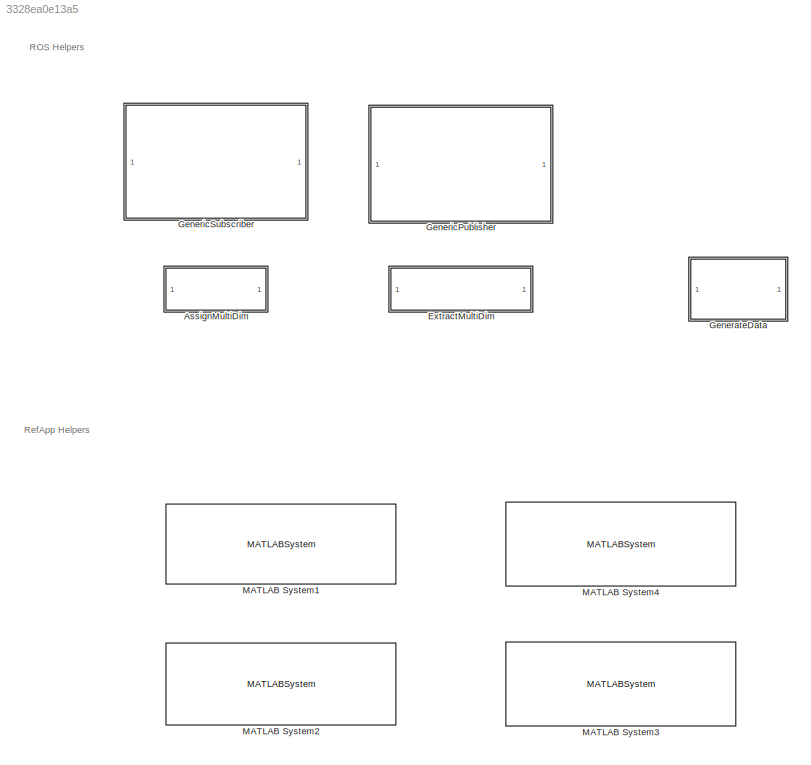
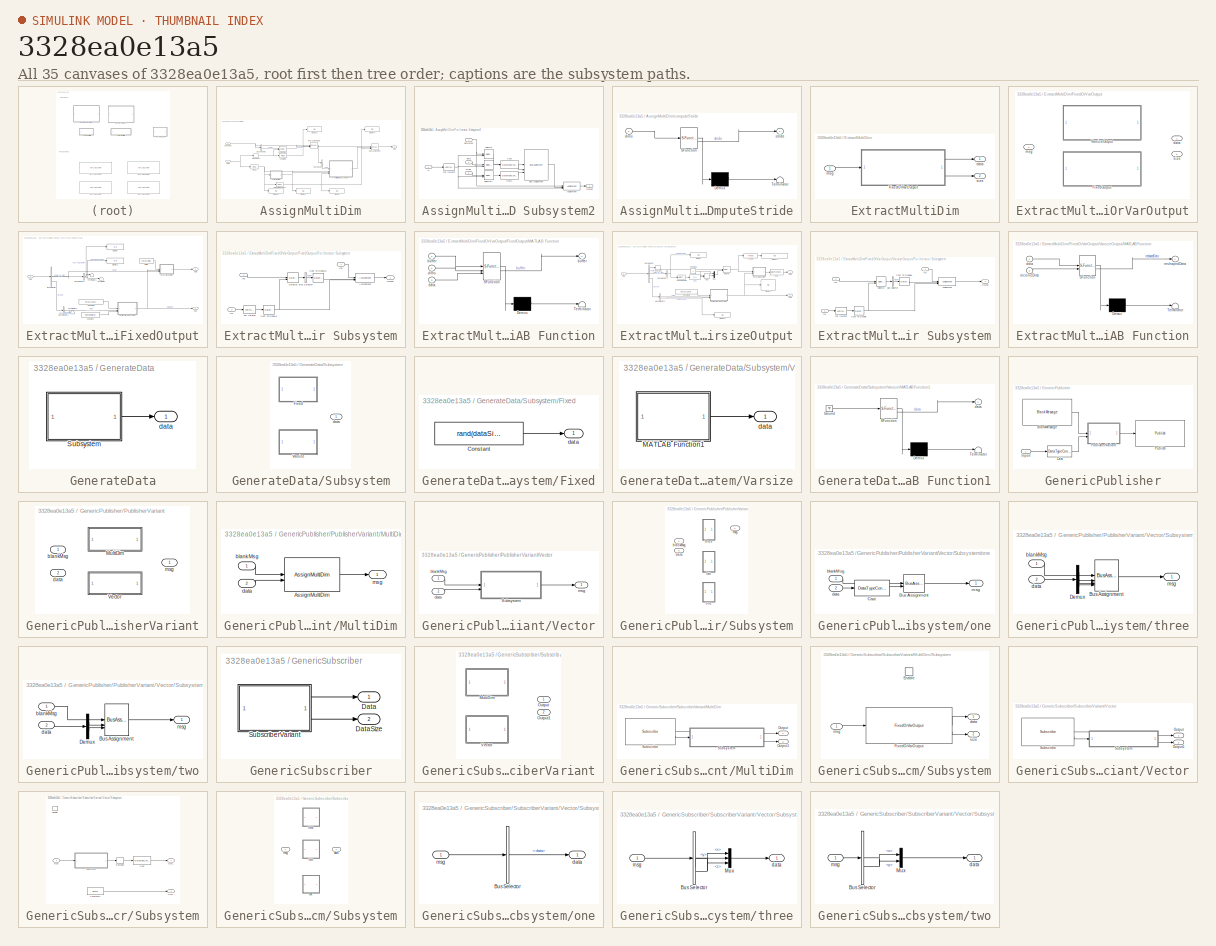
[diagram: thumbnail index - all 35 canvases of the model, root first then tree order]
MODEL slx_3328ea0e13a5
KIND library
CONFIG AbsTol = auto
CONFIG EnableMultiTasking = off
CONFIG FixedStep = auto
CONFIG MaxStep = auto
CONFIG MinStep = auto
CONFIG RelTol = 1e-3
CONFIG SampleTimeConstraint = Unconstrained
CONFIG SolverName = VariableStepAuto
CONFIG StartTime = 0.0
CONFIG StopTime = 10.0
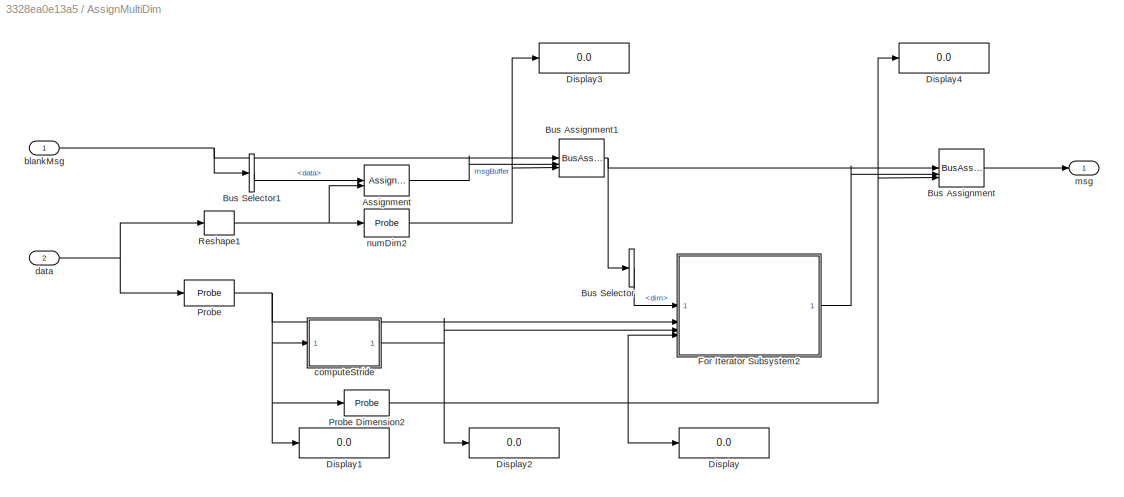
BLOCK [SubSystem] AssignMultiDim
BLOCK [Assignment] AssignMultiDim/Assignment
  DiagnosticForDimensions = Warning
  IndexOptions = Starting index (dialog)
  Indices = 1
  OutputSizes = 1
BLOCK [BusAssignment] AssignMultiDim/Bus Assignment
  AssignedSignals = layout.dim,layout.dim_SL_Info.CurrentLength
BLOCK [BusAssignment] AssignMultiDim/Bus Assignment1
  AssignedSignals = data,data_SL_Info.CurrentLength
BLOCK [BusSelector] AssignMultiDim/Bus Selector
  OutputSignals = layout.dim
BLOCK [BusSelector] AssignMultiDim/Bus Selector1
  OutputSignals = data
BLOCK [Display] AssignMultiDim/Display
  Decimation = 1
BLOCK [Display] AssignMultiDim/Display1
  Decimation = 1
BLOCK [Display] AssignMultiDim/Display2
  Decimation = 1
BLOCK [Display] AssignMultiDim/Display3
  Decimation = 1
BLOCK [Display] AssignMultiDim/Display4
  Decimation = 1
BLOCK [SubSystem] AssignMultiDim/For Iterator Subsystem2
  TreatAsAtomicUnit = on
BLOCK [Assignment] AssignMultiDim/For Iterator Subsystem2/Assignment
  DiagnosticForDimensions = Warning
  IndexOptions = Index vector (port)
  Indices = 1
  OutputSizes = 1
BLOCK [BusAssignment] AssignMultiDim/For Iterator Subsystem2/Bus Assignment
  AssignedSignals = size,stride
BLOCK [DataTypeConversion] AssignMultiDim/For Iterator Subsystem2/Cast
  OutDataTypeStr = uint32
  RndMeth = Floor
  SaturateOnIntegerOverflow = off
BLOCK [DataTypeConversion] AssignMultiDim/For Iterator Subsystem2/Cast1
  OutDataTypeStr = uint32
  RndMeth = Floor
  SaturateOnIntegerOverflow = off
BLOCK [ForIterator] AssignMultiDim/For Iterator Subsystem2/For Iterator
  IterationLimit = 16
  IterationSource = external
BLOCK [Inport] AssignMultiDim/For Iterator Subsystem2/N
  Port = 4
BLOCK [Outport] AssignMultiDim/For Iterator Subsystem2/Output
BLOCK [Selector] AssignMultiDim/For Iterator Subsystem2/Selector
  IndexOptions = Index vector (port)
  Indices = [1 3]
  InputPortWidth = 16
  OutputSizes = 1
BLOCK [Selector] AssignMultiDim/For Iterator Subsystem2/Selector1
  IndexOptions = Index vector (port)
  Indices = [1 3]
  OutputSizes = 1
BLOCK [Selector] AssignMultiDim/For Iterator Subsystem2/Selector2
  IndexOptions = Index vector (port)
  Indices = [1 3]
  OutputSizes = 1
BLOCK [Inport] AssignMultiDim/For Iterator Subsystem2/dimLayout
BLOCK [Inport] AssignMultiDim/For Iterator Subsystem2/dims
  Port = 2
BLOCK [Inport] AssignMultiDim/For Iterator Subsystem2/stride
  Port = 3
BLOCK [Probe] AssignMultiDim/Probe
  ProbeComplexSignal = off
  ProbeSampleTime = off
  ProbeSignalDimensions = on
  ProbeWidth = off
BLOCK [Probe] AssignMultiDim/Probe Dimension2
  ProbeComplexSignal = off
  ProbeDimensionsDataType = uint32
  ProbeSampleTime = off
  ProbeSignalDimensions = on
  ProbeWidth = off
  ProbeWidthDataType = uint32
BLOCK [Reshape] AssignMultiDim/Reshape1
BLOCK [Inport] AssignMultiDim/blankMsg
BLOCK [SubSystem] AssignMultiDim/computeStride
  ErrorFcn = Stateflow.Translate.translate
  PermitHierarchicalResolution = ExplicitOnly
  SFBlockType = MATLAB Function
  TreatAsAtomicUnit = on
BLOCK [Demux] AssignMultiDim/computeStride/ Demux 
  Outputs = 1
BLOCK [S-Function] AssignMultiDim/computeStride/ SFunction 
  EnableBusSupport = off
  FunctionName = sf_sfun
  PortCounts = [1 2]
  SFcnIsStateOwnerBlock = off
  SFunctionDeploymentMode = off
  Tag = Stateflow S-Function 4
BLOCK [Terminator] AssignMultiDim/computeStride/ Terminator 
BLOCK [Inport] AssignMultiDim/computeStride/dims
BLOCK [Outport] AssignMultiDim/computeStride/stride
BLOCK [Inport] AssignMultiDim/data
  Port = 2
BLOCK [Outport] AssignMultiDim/msg
BLOCK [Probe] AssignMultiDim/numDim2
  ProbeComplexSignal = off
  ProbeSampleTime = off
  ProbeWidthDataType = uint32
BLOCK [SubSystem] ExtractMultiDim
BLOCK [SubSystem] ExtractMultiDim/FixedOrVarOutput
  Variant = on
  VariantControl = Subsystem
BLOCK [SubSystem] ExtractMultiDim/FixedOrVarOutput/FixedOutput
  VariantControl = outputIsFixedTF==1
BLOCK [Constant] ExtractMultiDim/FixedOrVarOutput/FixedOutput/Buffer
  OutDataTypeStr = userDataType
  Value = zeros(dims)
BLOCK [BusSelector] ExtractMultiDim/FixedOrVarOutput/FixedOutput/Bus Selector
  OutputSignals = data,data_SL_Info,layout
BLOCK [BusSelector] ExtractMultiDim/FixedOrVarOutput/FixedOutput/Bus Selector1
  OutputSignals = CurrentLength,ReceivedLength
BLOCK [BusSelector] ExtractMultiDim/FixedOrVarOutput/FixedOutput/Bus Selector2
  OutputSignals = dim,dim_SL_Info.ReceivedLength
BLOCK [Constant] ExtractMultiDim/FixedOrVarOutput/FixedOutput/Constant
  Value = numel(dims)
BLOCK [Constant] ExtractMultiDim/FixedOrVarOutput/FixedOutput/Constant2
  Value = zeros(1,numel(dims))
  VectorParams1D = off
BLOCK [Display] ExtractMultiDim/FixedOrVarOutput/FixedOutput/Display
  Decimation = 1
BLOCK [Display] ExtractMultiDim/FixedOrVarOutput/FixedOutput/Display1
  Decimation = 1
BLOCK [SubSystem] ExtractMultiDim/FixedOrVarOutput/FixedOutput/For Iterator Subsystem
  TreatAsAtomicUnit = on
BLOCK [Assignment] ExtractMultiDim/FixedOrVarOutput/FixedOutput/For Iterator Subsystem/Assignment
  DiagnosticForDimensions = Warning
  IndexOptions = Starting index (port)
  Indices = 1
  OutputSizes = 1
BLOCK [BusSelector] ExtractMultiDim/FixedOrVarOutput/FixedOutput/For Iterator Subsystem/Bus Selector
  OutputSignals = size
BLOCK [DataTypeConversion] ExtractMultiDim/FixedOrVarOutput/FixedOutput/For Iterator Subsystem/Cast To Double
  OutDataTypeStr = double
  RndMeth = Floor
  SaturateOnIntegerOverflow = off
BLOCK [DataTypeConversion] ExtractMultiDim/FixedOrVarOutput/FixedOutput/For Iterator Subsystem/Cast To Double1
  OutDataTypeStr = double
  RndMeth = Floor
  SaturateOnIntegerOverflow = off
BLOCK [ForIterator] ExtractMultiDim/FixedOrVarOutput/FixedOutput/For Iterator Subsystem/For Iterator
  IterationSource = external
BLOCK [Inport] ExtractMultiDim/FixedOrVarOutput/FixedOutput/For Iterator Subsystem/In1
  Port = 3
BLOCK [Inport] ExtractMultiDim/FixedOrVarOutput/FixedOutput/For Iterator Subsystem/In2
  Port = 2
BLOCK [Inport] ExtractMultiDim/FixedOrVarOutput/FixedOutput/For Iterator Subsystem/In3
BLOCK [Outport] ExtractMultiDim/FixedOrVarOutput/FixedOutput/For Iterator Subsystem/Output
BLOCK [Selector] ExtractMultiDim/FixedOrVarOutput/FixedOutput/For Iterator Subsystem/Selector
  IndexOptions = Index vector (port)
  Indices = [1 3]
  InputPortWidth = 16
  OutputSizes = 1
BLOCK [SubSystem] ExtractMultiDim/FixedOrVarOutput/FixedOutput/MATLAB Function
  ErrorFcn = Stateflow.Translate.translate
  PermitHierarchicalResolution = ExplicitOnly
  SFBlockType = MATLAB Function
  TreatAsAtomicUnit = on
BLOCK [Demux] ExtractMultiDim/FixedOrVarOutput/FixedOutput/MATLAB Function/ Demux 
  Outputs = 1
BLOCK [S-Function] ExtractMultiDim/FixedOrVarOutput/FixedOutput/MATLAB Function/ SFunction 
  EnableBusSupport = off
  FunctionName = sf_sfun
  PortCounts = [3 2]
  SFcnIsStateOwnerBlock = off
  SFunctionDeploymentMode = off
  Tag = Stateflow S-Function 1
BLOCK [Terminator] ExtractMultiDim/FixedOrVarOutput/FixedOutput/MATLAB Function/ Terminator 
BLOCK [Outport] ExtractMultiDim/FixedOrVarOutput/FixedOutput/MATLAB Function/buffer
BLOCK [Inport] ExtractMultiDim/FixedOrVarOutput/FixedOutput/MATLAB Function/buffer 
BLOCK [Inport] ExtractMultiDim/FixedOrVarOutput/FixedOutput/MATLAB Function/data
  Port = 3
BLOCK [Inport] ExtractMultiDim/FixedOrVarOutput/FixedOutput/MATLAB Function/dims
  Port = 2
BLOCK [Terminator] ExtractMultiDim/FixedOrVarOutput/FixedOutput/Terminator
BLOCK [Terminator] ExtractMultiDim/FixedOrVarOutput/FixedOutput/Terminator1
BLOCK [Terminator] ExtractMultiDim/FixedOrVarOutput/FixedOutput/Terminator2
BLOCK [Outport] ExtractMultiDim/FixedOrVarOutput/FixedOutput/data
BLOCK [Inport] ExtractMultiDim/FixedOrVarOutput/FixedOutput/msg
BLOCK [Outport] ExtractMultiDim/FixedOrVarOutput/FixedOutput/size
  Port = 2
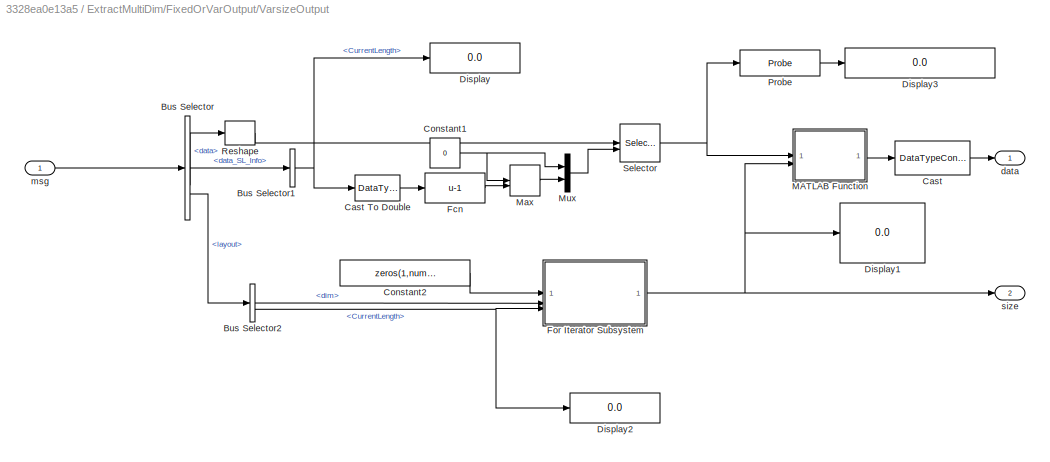
BLOCK [SubSystem] ExtractMultiDim/FixedOrVarOutput/VarsizeOutput
  VariantControl = outputIsFixedTF==0
BLOCK [BusSelector] ExtractMultiDim/FixedOrVarOutput/VarsizeOutput/Bus Selector
  OutputSignals = data,data_SL_Info,layout
BLOCK [BusSelector] ExtractMultiDim/FixedOrVarOutput/VarsizeOutput/Bus Selector1
  OutputSignals = CurrentLength
BLOCK [BusSelector] ExtractMultiDim/FixedOrVarOutput/VarsizeOutput/Bus Selector2
  OutputSignals = dim,dim_SL_Info.CurrentLength
BLOCK [DataTypeConversion] ExtractMultiDim/FixedOrVarOutput/VarsizeOutput/Cast
  OutDataTypeStr = userDataType
  RndMeth = Floor
  SaturateOnIntegerOverflow = off
BLOCK [DataTypeConversion] ExtractMultiDim/FixedOrVarOutput/VarsizeOutput/Cast To Double
  OutDataTypeStr = double
  RndMeth = Floor
  SaturateOnIntegerOverflow = off
BLOCK [Constant] ExtractMultiDim/FixedOrVarOutput/VarsizeOutput/Constant1
  Value = 0
BLOCK [Constant] ExtractMultiDim/FixedOrVarOutput/VarsizeOutput/Constant2
  Value = zeros(1,numel(dims))
  VectorParams1D = off
BLOCK [Display] ExtractMultiDim/FixedOrVarOutput/VarsizeOutput/Display
  Decimation = 1
BLOCK [Display] ExtractMultiDim/FixedOrVarOutput/VarsizeOutput/Display1
  Decimation = 1
BLOCK [Display] ExtractMultiDim/FixedOrVarOutput/VarsizeOutput/Display2
  Decimation = 1
BLOCK [Display] ExtractMultiDim/FixedOrVarOutput/VarsizeOutput/Display3
  Decimation = 1
BLOCK [Fcn] ExtractMultiDim/FixedOrVarOutput/VarsizeOutput/Fcn
  Expr = u-1
BLOCK [SubSystem] ExtractMultiDim/FixedOrVarOutput/VarsizeOutput/For Iterator Subsystem
  TreatAsAtomicUnit = on
BLOCK [Assignment] ExtractMultiDim/FixedOrVarOutput/VarsizeOutput/For Iterator Subsystem/Assignment
  DiagnosticForDimensions = Warning
  IndexOptions = Starting index (port)
  Indices = 1
  OutputSizes = 1
BLOCK [BusSelector] ExtractMultiDim/FixedOrVarOutput/VarsizeOutput/For Iterator Subsystem/Bus Selector
  OutputSignals = size
BLOCK [DataTypeConversion] ExtractMultiDim/FixedOrVarOutput/VarsizeOutput/For Iterator Subsystem/Cast To Double
  OutDataTypeStr = double
  RndMeth = Floor
  SaturateOnIntegerOverflow = off
BLOCK [DataTypeConversion] ExtractMultiDim/FixedOrVarOutput/VarsizeOutput/For Iterator Subsystem/Cast To Double1
  OutDataTypeStr = double
  RndMeth = Floor
  SaturateOnIntegerOverflow = off
BLOCK [ForIterator] ExtractMultiDim/FixedOrVarOutput/VarsizeOutput/For Iterator Subsystem/For Iterator
  IterationSource = external
BLOCK [Inport] ExtractMultiDim/FixedOrVarOutput/VarsizeOutput/For Iterator Subsystem/In1
  Port = 3
BLOCK [Inport] ExtractMultiDim/FixedOrVarOutput/VarsizeOutput/For Iterator Subsystem/In2
  Port = 2
BLOCK [Inport] ExtractMultiDim/FixedOrVarOutput/VarsizeOutput/For Iterator Subsystem/In3
BLOCK [Outport] ExtractMultiDim/FixedOrVarOutput/VarsizeOutput/For Iterator Subsystem/Output
BLOCK [Selector] ExtractMultiDim/FixedOrVarOutput/VarsizeOutput/For Iterator Subsystem/Selector
  IndexOptions = Index vector (port)
  Indices = [1 3]
  InputPortWidth = 16
  OutputSizes = 1
BLOCK [SubSystem] ExtractMultiDim/FixedOrVarOutput/VarsizeOutput/MATLAB Function
  ErrorFcn = Stateflow.Translate.translate
  PermitHierarchicalResolution = ExplicitOnly
  SFBlockType = MATLAB Function
  TreatAsAtomicUnit = on
BLOCK [Demux] ExtractMultiDim/FixedOrVarOutput/VarsizeOutput/MATLAB Function/ Demux 
  Outputs = 1
BLOCK [S-Function] ExtractMultiDim/FixedOrVarOutput/VarsizeOutput/MATLAB Function/ SFunction 
  EnableBusSupport = off
  FunctionName = sf_sfun
  PortCounts = [2 2]
  SFcnIsStateOwnerBlock = off
  SFunctionDeploymentMode = off
  Tag = Stateflow S-Function 8
BLOCK [Terminator] ExtractMultiDim/FixedOrVarOutput/VarsizeOutput/MATLAB Function/ Terminator 
BLOCK [Inport] ExtractMultiDim/FixedOrVarOutput/VarsizeOutput/MATLAB Function/data
BLOCK [Inport] ExtractMultiDim/FixedOrVarOutput/VarsizeOutput/MATLAB Function/receiveDims
  Port = 2
BLOCK [Outport] ExtractMultiDim/FixedOrVarOutput/VarsizeOutput/MATLAB Function/reshapedData
BLOCK [MinMax] ExtractMultiDim/FixedOrVarOutput/VarsizeOutput/Max
  Function = max
  Inputs = 2
BLOCK [Mux] ExtractMultiDim/FixedOrVarOutput/VarsizeOutput/Mux
  DisplayOption = bar
  Inputs = 2
BLOCK [Probe] ExtractMultiDim/FixedOrVarOutput/VarsizeOutput/Probe
  ProbeComplexSignal = off
  ProbeSampleTime = off
  ProbeSignalDimensions = on
  ProbeWidth = off
BLOCK [Reshape] ExtractMultiDim/FixedOrVarOutput/VarsizeOutput/Reshape
  OutputDimensionality = Column vector (2-D)
BLOCK [Selector] ExtractMultiDim/FixedOrVarOutput/VarsizeOutput/Selector
  IndexMode = Zero-based
  IndexOptions = Starting and ending indices (port),Select all
  Indices = [1 3],1
  InputPortWidth = 1
  NumberOfDimensions = 2
  OutputSizes = 1,1
BLOCK [Outport] ExtractMultiDim/FixedOrVarOutput/VarsizeOutput/data
BLOCK [Inport] ExtractMultiDim/FixedOrVarOutput/VarsizeOutput/msg
BLOCK [Outport] ExtractMultiDim/FixedOrVarOutput/VarsizeOutput/size
  Port = 2
BLOCK [Outport] ExtractMultiDim/FixedOrVarOutput/data
BLOCK [Inport] ExtractMultiDim/FixedOrVarOutput/msg
BLOCK [Outport] ExtractMultiDim/FixedOrVarOutput/size
  Port = 2
BLOCK [Outport] ExtractMultiDim/data
BLOCK [Inport] ExtractMultiDim/msg
BLOCK [Outport] ExtractMultiDim/size
  Port = 2
BLOCK [SubSystem] GenerateData
BLOCK [SubSystem] GenerateData/Subsystem
  Variant = on
  VariantControl = Subsystem
BLOCK [SubSystem] GenerateData/Subsystem/Fixed
  VariantControl = variantFixedTF == 1
BLOCK [Constant] GenerateData/Subsystem/Fixed/Constant
  Value = rand(dataSize)
BLOCK [Outport] GenerateData/Subsystem/Fixed/data
BLOCK [SubSystem] GenerateData/Subsystem/Varsize
  VariantControl = variantFixedTF == 0
BLOCK [SubSystem] GenerateData/Subsystem/Varsize/MATLAB Function1
  ErrorFcn = Stateflow.Translate.translate
  PermitHierarchicalResolution = ExplicitOnly
  SFBlockType = MATLAB Function
  TreatAsAtomicUnit = on
BLOCK [Demux] GenerateData/Subsystem/Varsize/MATLAB Function1/ Demux 
  Outputs = 1
BLOCK [Ground] GenerateData/Subsystem/Varsize/MATLAB Function1/ Ground 
BLOCK [S-Function] GenerateData/Subsystem/Varsize/MATLAB Function1/ SFunction 
  EnableBusSupport = off
  FunctionName = sf_sfun
  Parameters = dataSize,isVarsize
  PortCounts = [1 2]
  SFcnIsStateOwnerBlock = off
  SFunctionDeploymentMode = off
  Tag = Stateflow S-Function 7
BLOCK [Terminator] GenerateData/Subsystem/Varsize/MATLAB Function1/ Terminator 
BLOCK [Outport] GenerateData/Subsystem/Varsize/MATLAB Function1/data
BLOCK [Outport] GenerateData/Subsystem/Varsize/data
BLOCK [Outport] GenerateData/Subsystem/data
BLOCK [Outport] GenerateData/data
BLOCK [SubSystem] GenericPublisher
BLOCK [Reference] GenericPublisher/BlankMessage  REF=ros2lib/Blank Message  (lib defined in slx_3c1549211f48)
  SourceBlock = ros2lib/Blank Message
  SourceType = ROS2 Blank Message
BLOCK [DataTypeConversion] GenericPublisher/Cast
  OutDataTypeStr = userDataType
  RndMeth = Floor
  SaturateOnIntegerOverflow = off
BLOCK [Inport] GenericPublisher/Inport
BLOCK [Reference] GenericPublisher/Publish  REF=ros2lib/Publish  (lib defined in slx_3c1549211f48)
  SourceBlock = ros2lib/Publish
  SourceType = ROS2 Publish
BLOCK [SubSystem] GenericPublisher/PublisherVariant
  Variant = on
  VariantControl = useFixedTF==0
BLOCK [SubSystem] GenericPublisher/PublisherVariant/MultiDim
  VariantControl = useVarsizeTF==1
BLOCK [Reference] GenericPublisher/PublisherVariant/MultiDim/AssignMultiDim  REF=$bdroot/AssignMultiDim
  SourceBlock = $bdroot/AssignMultiDim
  SourceType = SubSystem
BLOCK [Inport] GenericPublisher/PublisherVariant/MultiDim/blankMsg
BLOCK [Inport] GenericPublisher/PublisherVariant/MultiDim/data
  Port = 2
BLOCK [Outport] GenericPublisher/PublisherVariant/MultiDim/msg
BLOCK [SubSystem] GenericPublisher/PublisherVariant/Vector
  VariantControl = useVarsizeTF==0
BLOCK [SubSystem] GenericPublisher/PublisherVariant/Vector/Subsystem
  Variant = on
  VariantControl = Subsystem
BLOCK [Inport] GenericPublisher/PublisherVariant/Vector/Subsystem/blankMsg
BLOCK [Inport] GenericPublisher/PublisherVariant/Vector/Subsystem/data
  Port = 2
BLOCK [Outport] GenericPublisher/PublisherVariant/Vector/Subsystem/msg
BLOCK [SubSystem] GenericPublisher/PublisherVariant/Vector/Subsystem/one
  VariantControl = N==1
BLOCK [BusAssignment] GenericPublisher/PublisherVariant/Vector/Subsystem/one/Bus Assignment
  AssignedSignals = data
BLOCK [DataTypeConversion] GenericPublisher/PublisherVariant/Vector/Subsystem/one/Cast
  OutDataTypeStr = userDataType
  RndMeth = Floor
  SaturateOnIntegerOverflow = off
BLOCK [Inport] GenericPublisher/PublisherVariant/Vector/Subsystem/one/blankMsg
BLOCK [Inport] GenericPublisher/PublisherVariant/Vector/Subsystem/one/data
  Port = 2
BLOCK [Outport] GenericPublisher/PublisherVariant/Vector/Subsystem/one/msg
BLOCK [SubSystem] GenericPublisher/PublisherVariant/Vector/Subsystem/three
  VariantControl = N==3
BLOCK [BusAssignment] GenericPublisher/PublisherVariant/Vector/Subsystem/three/Bus Assignment
  AssignedSignals = x,y,z
BLOCK [Demux] GenericPublisher/PublisherVariant/Vector/Subsystem/three/Demux
  Outputs = 3
BLOCK [Inport] GenericPublisher/PublisherVariant/Vector/Subsystem/three/blankMsg
  NameLocation = top
BLOCK [Inport] GenericPublisher/PublisherVariant/Vector/Subsystem/three/data
  Port = 2
BLOCK [Outport] GenericPublisher/PublisherVariant/Vector/Subsystem/three/msg
BLOCK [SubSystem] GenericPublisher/PublisherVariant/Vector/Subsystem/two
  VariantControl = N==2
BLOCK [BusAssignment] GenericPublisher/PublisherVariant/Vector/Subsystem/two/Bus Assignment
  AssignedSignals = x,y
BLOCK [Demux] GenericPublisher/PublisherVariant/Vector/Subsystem/two/Demux
  Outputs = 2
BLOCK [Inport] GenericPublisher/PublisherVariant/Vector/Subsystem/two/blankMsg
  NameLocation = top
BLOCK [Inport] GenericPublisher/PublisherVariant/Vector/Subsystem/two/data
  Port = 2
BLOCK [Outport] GenericPublisher/PublisherVariant/Vector/Subsystem/two/msg
BLOCK [Inport] GenericPublisher/PublisherVariant/Vector/blankMsg
BLOCK [Inport] GenericPublisher/PublisherVariant/Vector/data
  Port = 2
BLOCK [Outport] GenericPublisher/PublisherVariant/Vector/msg
BLOCK [Inport] GenericPublisher/PublisherVariant/blankMsg
BLOCK [Inport] GenericPublisher/PublisherVariant/data
  Port = 2
BLOCK [Outport] GenericPublisher/PublisherVariant/msg
BLOCK [SubSystem] GenericSubscriber
BLOCK [Outport] GenericSubscriber/Data
BLOCK [Outport] GenericSubscriber/DataSize
  Port = 2
BLOCK [SubSystem] GenericSubscriber/SubscriberVariant
  Variant = on
  VariantControl = useFixedTF==0
BLOCK [SubSystem] GenericSubscriber/SubscriberVariant/MultiDim
  VariantControl = useMultiDimTF==1
BLOCK [Outport] GenericSubscriber/SubscriberVariant/MultiDim/Output
BLOCK [Outport] GenericSubscriber/SubscriberVariant/MultiDim/Output1
  Port = 2
BLOCK [Reference] GenericSubscriber/SubscriberVariant/MultiDim/Subscribe  REF=ros2lib/Subscribe  (lib defined in slx_3c1549211f48)
  SourceBlock = ros2lib/Subscribe
  SourceType = ROS2 Subscribe
BLOCK [SubSystem] GenericSubscriber/SubscriberVariant/MultiDim/Subsystem
BLOCK [EnablePort] GenericSubscriber/SubscriberVariant/MultiDim/Subsystem/Enable
  PropagateVarSize = During execution
BLOCK [Reference] GenericSubscriber/SubscriberVariant/MultiDim/Subsystem/FixedOrVarOutput  REF=$bdroot/ExtractMultiDim/FixedOrVarOutput
  SourceBlock = $bdroot/ExtractMultiDim/FixedOrVarOutput
  SourceType = SubSystem
BLOCK [Outport] GenericSubscriber/SubscriberVariant/MultiDim/Subsystem/data
BLOCK [Inport] GenericSubscriber/SubscriberVariant/MultiDim/Subsystem/msg
BLOCK [Outport] GenericSubscriber/SubscriberVariant/MultiDim/Subsystem/size
  Port = 2
BLOCK [Outport] GenericSubscriber/SubscriberVariant/Output
BLOCK [Outport] GenericSubscriber/SubscriberVariant/Output1
  Port = 2
BLOCK [SubSystem] GenericSubscriber/SubscriberVariant/Vector
  VariantControl = useMultiDimTF==0
BLOCK [Outport] GenericSubscriber/SubscriberVariant/Vector/Output
BLOCK [Outport] GenericSubscriber/SubscriberVariant/Vector/Output1
  Port = 2
BLOCK [Reference] GenericSubscriber/SubscriberVariant/Vector/Subscribe  REF=ros2lib/Subscribe  (lib defined in slx_3c1549211f48)
  SourceBlock = ros2lib/Subscribe
  SourceType = ROS2 Subscribe
BLOCK [SubSystem] GenericSubscriber/SubscriberVariant/Vector/Subsystem
BLOCK [DataTypeConversion] GenericSubscriber/SubscriberVariant/Vector/Subsystem/Cast
  OutDataTypeStr = userDataType
  RndMeth = Floor
  SaturateOnIntegerOverflow = off
BLOCK [Constant] GenericSubscriber/SubscriberVariant/Vector/Subsystem/Constant2
  Value = dims
BLOCK [EnablePort] GenericSubscriber/SubscriberVariant/Vector/Subsystem/Enable
  PropagateVarSize = During execution
BLOCK [Outport] GenericSubscriber/SubscriberVariant/Vector/Subsystem/Out1
BLOCK [Outport] GenericSubscriber/SubscriberVariant/Vector/Subsystem/Out2
  Port = 2
BLOCK [Reshape] GenericSubscriber/SubscriberVariant/Vector/Subsystem/Reshape
  OutputDimensionality = Customize
  OutputDimensions = dims
BLOCK [SubSystem] GenericSubscriber/SubscriberVariant/Vector/Subsystem/Subsystem
  Variant = on
  VariantControl = Subsystem
BLOCK [Outport] GenericSubscriber/SubscriberVariant/Vector/Subsystem/Subsystem/data
BLOCK [Inport] GenericSubscriber/SubscriberVariant/Vector/Subsystem/Subsystem/msg
BLOCK [SubSystem] GenericSubscriber/SubscriberVariant/Vector/Subsystem/Subsystem/one
  VariantControl = N==1
BLOCK [BusSelector] GenericSubscriber/SubscriberVariant/Vector/Subsystem/Subsystem/one/Bus Selector
  OutputSignals = data
BLOCK [Outport] GenericSubscriber/SubscriberVariant/Vector/Subsystem/Subsystem/one/data
BLOCK [Inport] GenericSubscriber/SubscriberVariant/Vector/Subsystem/Subsystem/one/msg
BLOCK [SubSystem] GenericSubscriber/SubscriberVariant/Vector/Subsystem/Subsystem/three
  VariantControl = N==3
BLOCK [BusSelector] GenericSubscriber/SubscriberVariant/Vector/Subsystem/Subsystem/three/Bus Selector
  OutputSignals = x,y,z
BLOCK [Mux] GenericSubscriber/SubscriberVariant/Vector/Subsystem/Subsystem/three/Mux
  DisplayOption = bar
  Inputs = 3
BLOCK [Outport] GenericSubscriber/SubscriberVariant/Vector/Subsystem/Subsystem/three/data
BLOCK [Inport] GenericSubscriber/SubscriberVariant/Vector/Subsystem/Subsystem/three/msg
BLOCK [SubSystem] GenericSubscriber/SubscriberVariant/Vector/Subsystem/Subsystem/two
  VariantControl = N==2
BLOCK [BusSelector] GenericSubscriber/SubscriberVariant/Vector/Subsystem/Subsystem/two/Bus Selector
  OutputSignals = x,y
BLOCK [Mux] GenericSubscriber/SubscriberVariant/Vector/Subsystem/Subsystem/two/Mux
  DisplayOption = bar
  Inputs = 2
BLOCK [Outport] GenericSubscriber/SubscriberVariant/Vector/Subsystem/Subsystem/two/data
BLOCK [Inport] GenericSubscriber/SubscriberVariant/Vector/Subsystem/Subsystem/two/msg
BLOCK [Inport] GenericSubscriber/SubscriberVariant/Vector/Subsystem/msg
BLOCK [MATLABSystem] MATLAB System1
  DisplayVisual = on
  IsEgo = off
  MapType = SDF
  MaskDisplay = disp('exampleHelperMapVisualizerSys');\nport_label('input',1,'mat');\nport_label('input',2,'gridSize');\nport_label('input',3,'res');\nport_label('input',4,'gridLoc');
  MaskType = exampleHelperMapVisualizerSys
  SimulateUsing = Interpreted execution
  System = exampleHelperMapVisualizerSys
BLOCK [MATLABSystem] MATLAB System2
  DisplayVisual = on
  MaskDisplay = disp('exampleHelperPathVisualizerSys');\nport_label('input',1,'Path');\nport_label('input',2,'nRows');
  MaskType = exampleHelperPathVisualizerSys
  PlotType = Line
  SimulateUsing = Interpreted execution
  System = exampleHelperPathVisualizerSys
  VisualizationParameters = {'k-'}
BLOCK [MATLABSystem] MATLAB System3
  DisplayVisual = on
  Length = 4
  MaskDisplay = disp('exampleHelperVehicleVisualizerSys');\nport_label('input',1,'curPose');
  MaskType = exampleHelperVehicleVisualizerSys
  NumCircles = 3
  SimulateUsing = Interpreted execution
  System = exampleHelperVehicleVisualizerSys
  Width = 2
BLOCK [MATLABSystem] MATLAB System4
  DisplayVisual = on
  EdgeAlpha = 1
  EdgeColor = r
  GraphSpec = cell(1,0)
  LineStyle = -
  MaskDisplay = disp('exampleHelperGraphVisualizerSys');\nport_label('input',1,'pathList');
  MaskType = exampleHelperGraphVisualizerSys
  MaxEdgeElem = Inf
  NetworkAlpha = 1
  NetworkColor = b
  NetworkSpec = cell(1,0)
  NetworkStyle = :
  NodeColor = r
  SimulateUsing = Interpreted execution
  System = exampleHelperGraphVisualizerSys
ANNOTATION (root): ROS Helpers
ANNOTATION (root): RefApp Helpers
LINE AssignMultiDim/Assignment:1 -> AssignMultiDim/Bus Assignment1:2
NET AssignMultiDim/Bus Assignment1:1 -> AssignMultiDim/Bus Assignment:1, AssignMultiDim/Bus Selector:1
LINE AssignMultiDim/Bus Assignment:1 -> AssignMultiDim/msg:1
LINE AssignMultiDim/Bus Selector1:1 -> AssignMultiDim/Assignment:1
LINE AssignMultiDim/Bus Selector:1 -> AssignMultiDim/For Iterator Subsystem2:1
LINE AssignMultiDim/For Iterator Subsystem2/Assignment:1 -> AssignMultiDim/For Iterator Subsystem2/Output:1
LINE AssignMultiDim/For Iterator Subsystem2/Bus Assignment:1 -> AssignMultiDim/For Iterator Subsystem2/Assignment:2
LINE AssignMultiDim/For Iterator Subsystem2/Cast1:1 -> AssignMultiDim/For Iterator Subsystem2/Bus Assignment:3
LINE AssignMultiDim/For Iterator Subsystem2/Cast:1 -> AssignMultiDim/For Iterator Subsystem2/Bus Assignment:2
NET AssignMultiDim/For Iterator Subsystem2/For Iterator:1 -> AssignMultiDim/For Iterator Subsystem2/Assignment:3, AssignMultiDim/For Iterator Subsystem2/Selector1:2, AssignMultiDim/For Iterator Subsystem2/Selector2:2, AssignMultiDim/For Iterator Subsystem2/Selector:2
LINE AssignMultiDim/For Iterator Subsystem2/N:1 -> AssignMultiDim/For Iterator Subsystem2/For Iterator:1
LINE AssignMultiDim/For Iterator Subsystem2/Selector1:1 -> AssignMultiDim/For Iterator Subsystem2/Cast1:1
LINE AssignMultiDim/For Iterator Subsystem2/Selector2:1 -> AssignMultiDim/For Iterator Subsystem2/Cast:1
LINE AssignMultiDim/For Iterator Subsystem2/Selector:1 -> AssignMultiDim/For Iterator Subsystem2/Bus Assignment:1
NET AssignMultiDim/For Iterator Subsystem2/dimLayout:1 -> AssignMultiDim/For Iterator Subsystem2/Assignment:1, AssignMultiDim/For Iterator Subsystem2/Selector:1
LINE AssignMultiDim/For Iterator Subsystem2/dims:1 -> AssignMultiDim/For Iterator Subsystem2/Selector2:1
LINE AssignMultiDim/For Iterator Subsystem2/stride:1 -> AssignMultiDim/For Iterator Subsystem2/Selector1:1
LINE AssignMultiDim/For Iterator Subsystem2:1 -> AssignMultiDim/Bus Assignment:2
NET AssignMultiDim/Probe Dimension2:1 -> AssignMultiDim/Bus Assignment:3, AssignMultiDim/Display4:1, AssignMultiDim/Display:1, AssignMultiDim/For Iterator Subsystem2:4
NET AssignMultiDim/Probe:1 -> AssignMultiDim/Display1:1, AssignMultiDim/For Iterator Subsystem2:2, AssignMultiDim/Probe Dimension2:1, AssignMultiDim/computeStride:1
NET AssignMultiDim/Reshape1:1 -> AssignMultiDim/Assignment:2, AssignMultiDim/numDim2:1
NET AssignMultiDim/blankMsg:1 -> AssignMultiDim/Bus Assignment1:1, AssignMultiDim/Bus Selector1:1
NET AssignMultiDim/computeStride:1 -> AssignMultiDim/Display2:1, AssignMultiDim/For Iterator Subsystem2:3
NET AssignMultiDim/data:1 -> AssignMultiDim/Probe:1, AssignMultiDim/Reshape1:1
NET AssignMultiDim/numDim2:1 -> AssignMultiDim/Bus Assignment1:3, AssignMultiDim/Display3:1
LINE GenerateData/Subsystem/Fixed/Constant:1 -> GenerateData/Subsystem/Fixed/data:1
LINE GenerateData/Subsystem/Varsize/MATLAB Function1:1 -> GenerateData/Subsystem/Varsize/data:1
LINE GenerateData/Subsystem:1 -> GenerateData/data:1
note: NET lines group one-source signal fan-out (src -> all destinations, sorted); 1:1 wires keep LINE
CHART AssignMultiDim/computeStride states=1 transitions=1
  STATE_LABEL 'eML_blk_kernel()'
  STATE_LABEL "SCRIPT:\nfunction stride = fcn(dims)\n    stride = cumprod([1 dims(1:end-1)']);"
CHART GenerateData/Subsystem/Varsize/MATLAB Function1 states=1 transitions=1
  STATE_LABEL 'eML_blk_kernel()'
  STATE_LABEL 'SCRIPT:\nfunction data = generateVarsizeData(dataSize, isVarsize)\n    n = numel(dataSize);\n    sz = dataSize;\n    for i = 1:n\n        if isVarsize(i)\n            sz(i) = randi([1,dataSize(i)],1);\n        end\n    end\n    data = rand(sz);\nend'
CHART ExtractMultiDim/FixedOrVarOutput/VarsizeOutput/MATLAB Function states=1 transitions=1
  STATE_LABEL 'eML_blk_kernel()'
  STATE_LABEL "SCRIPT:\nfunction reshapedData = makeVarsize(data, receiveDims)\nreshapedData = zeros(receiveDims,'like',data);\nif prod(receiveDims) ~= 0\n    reshapedData(:) = data(1:prod(receiveDims),1);\nend\n"
CHART ExtractMultiDim/FixedOrVarOutput/FixedOutput/MATLAB Function states=1 transitions=1
  STATE_LABEL 'eML_blk_kernel()'
  STATE_LABEL 'SCRIPT:\nfunction buffer = fcn(buffer, dims, data)\n    buffer = subassignBuffer(buffer,dims,data(1:prod(dims)));\nend'
CHART  states=0 transitions=0
CHART  states=0 transitions=0
CHART  states=0 transitions=0
CHART  states=0 transitions=0
